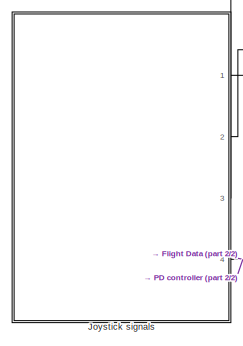
[diagram: root canvas - part 1/2, top left region]
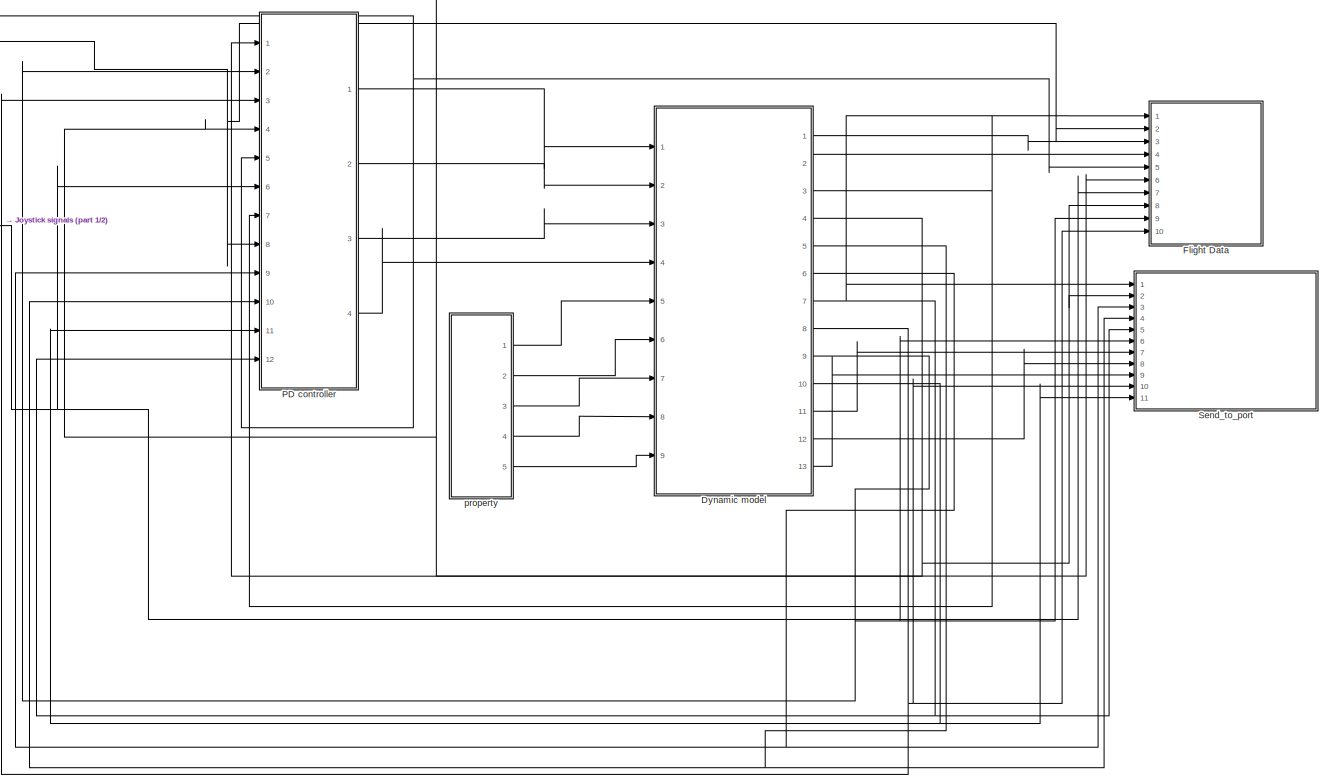
[diagram: root canvas - part 2/2, most of the canvas]
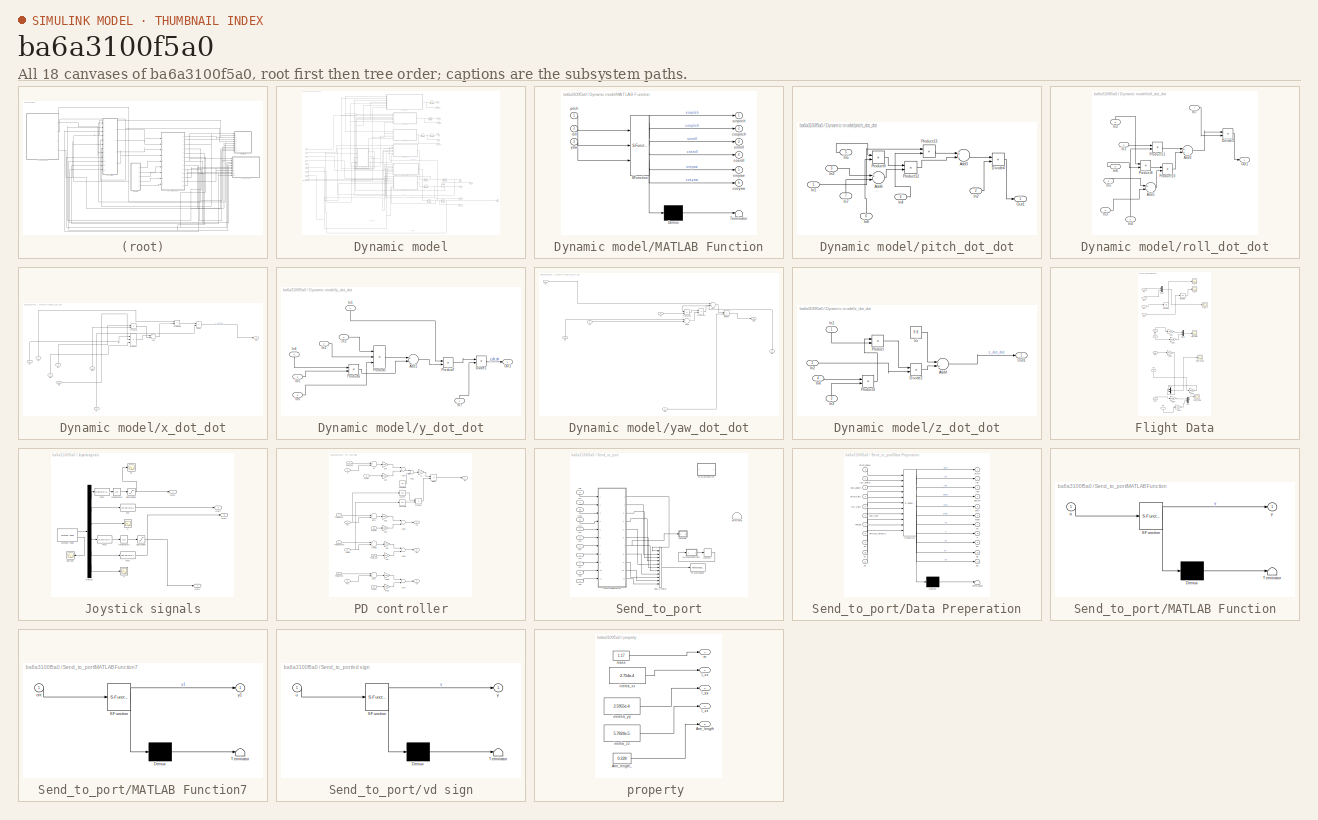
[diagram: thumbnail index - all 18 canvases of the model, root first then tree order]
MODEL slx_ba6a3100f5a0
KIND model
CONFIG AbsTol = auto
CONFIG FixedStep = 0.01
CONFIG MaxStep = auto
CONFIG MinStep = auto
CONFIG RelTol = 1e-3
CONFIG SampleTimeConstraint = Unconstrained
CONFIG Solver = ode45
CONFIG SolverMode = Auto
CONFIG SolverName = ode45
CONFIG StartTime = 0.0
CONFIG StopTime = 100
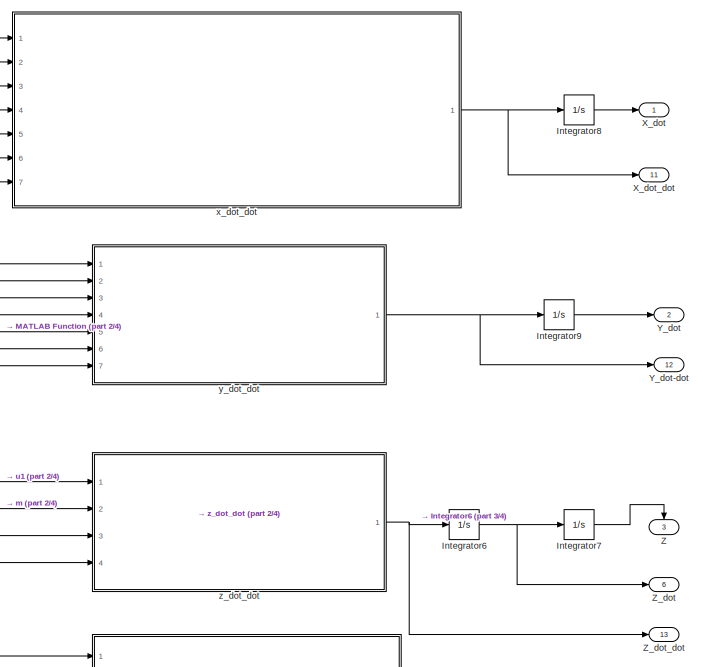
[diagram: Dynamic model - part 1/4, top center region]
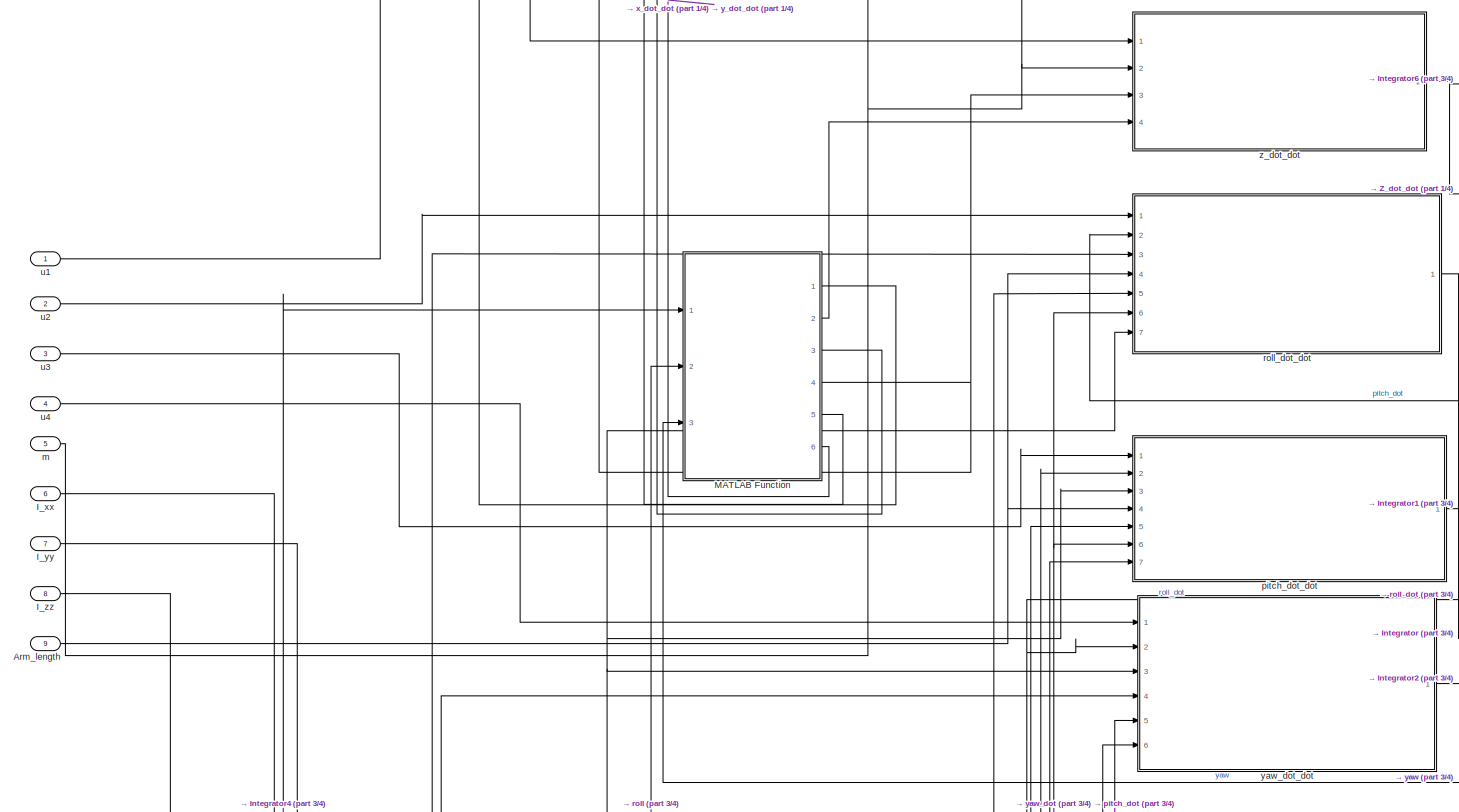
[diagram: Dynamic model - part 2/4, middle left region]
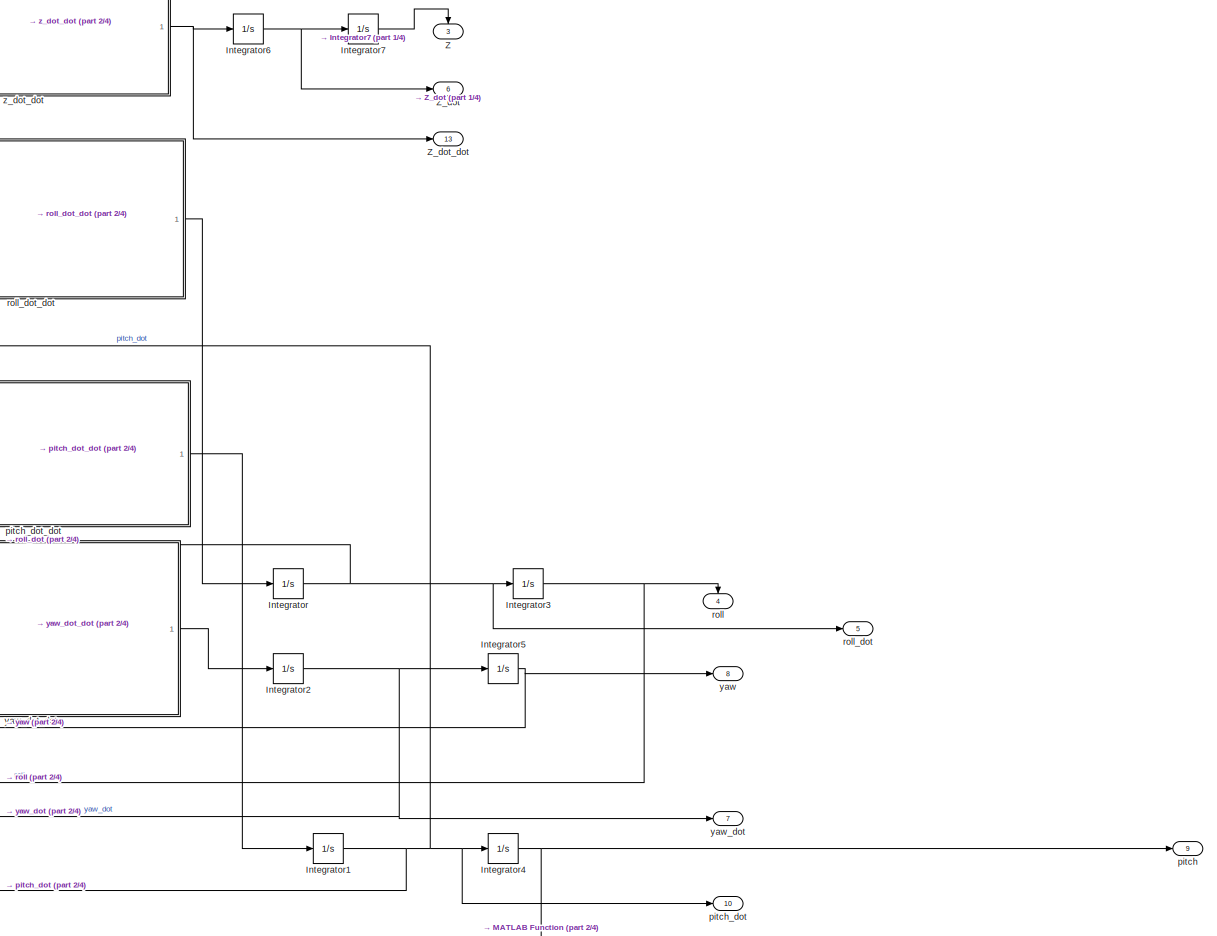
[diagram: Dynamic model - part 3/4, middle right region]
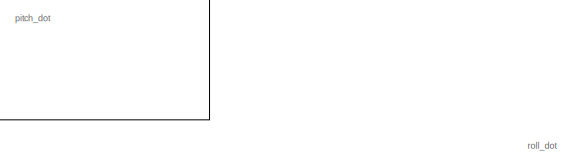
[diagram: Dynamic model - part 4/4, bottom center region]
BLOCK [SubSystem] Dynamic model
  Ports = [9, 13]
  RequestExecContextInheritance = off
BLOCK [Inport] Dynamic model/Arm_length
  IconDisplay = Port number
  Port = 9
BLOCK [Inport] Dynamic model/I_xx
  IconDisplay = Port number
  Port = 6
BLOCK [Inport] Dynamic model/I_yy
  IconDisplay = Port number
  Port = 7
BLOCK [Inport] Dynamic model/I_zz
  IconDisplay = Port number
  Port = 8
BLOCK [Integrator] Dynamic model/Integrator
  Ports = [1, 1]
BLOCK [Integrator] Dynamic model/Integrator1
  Ports = [1, 1]
BLOCK [Integrator] Dynamic model/Integrator2
  Ports = [1, 1]
BLOCK [Integrator] Dynamic model/Integrator3
  Ports = [1, 1]
BLOCK [Integrator] Dynamic model/Integrator4
  Ports = [1, 1]
BLOCK [Integrator] Dynamic model/Integrator5
  Ports = [1, 1]
BLOCK [Integrator] Dynamic model/Integrator6
  Ports = [1, 1]
BLOCK [Integrator] Dynamic model/Integrator7
  Ports = [1, 1]
BLOCK [Integrator] Dynamic model/Integrator8
  Ports = [1, 1]
BLOCK [Integrator] Dynamic model/Integrator9
  Ports = [1, 1]
BLOCK [SubSystem] Dynamic model/MATLAB Function
  ErrorFcn = Stateflow.Translate.translate
  PermitHierarchicalResolution = ExplicitOnly
  Ports = [3, 6]
  RequestExecContextInheritance = off
  SFBlockType = MATLAB Function
  TreatAsAtomicUnit = on
BLOCK [Demux] Dynamic model/MATLAB Function/ Demux 
  Outputs = 1
  Ports = [1, 1]
BLOCK [S-Function] Dynamic model/MATLAB Function/ SFunction 
  EnableBusSupport = on
  FunctionName = sf_sfun
  PortCounts = [3 7]
  Ports = [3, 7]
  Tag = Stateflow S-Function Innerloop_joystick_PIL_block 8
BLOCK [Terminator] Dynamic model/MATLAB Function/ Terminator 
BLOCK [Outport] Dynamic model/MATLAB Function/cospitch
  IconDisplay = Port number
  Port = 2
BLOCK [Outport] Dynamic model/MATLAB Function/cosroll
  IconDisplay = Port number
  Port = 4
BLOCK [Outport] Dynamic model/MATLAB Function/cosyaw
  IconDisplay = Port number
  Port = 6
BLOCK [Inport] Dynamic model/MATLAB Function/pitch
  IconDisplay = Port number
BLOCK [Inport] Dynamic model/MATLAB Function/roll
  IconDisplay = Port number
  Port = 2
BLOCK [Outport] Dynamic model/MATLAB Function/sinpitch
  IconDisplay = Port number
BLOCK [Outport] Dynamic model/MATLAB Function/sinroll
  IconDisplay = Port number
  Port = 3
BLOCK [Outport] Dynamic model/MATLAB Function/sinyaw
  IconDisplay = Port number
  Port = 5
BLOCK [Inport] Dynamic model/MATLAB Function/yaw
  IconDisplay = Port number
  Port = 3
BLOCK [Outport] Dynamic model/X_dot 
  IconDisplay = Port number
BLOCK [Outport] Dynamic model/X_dot_dot
  IconDisplay = Port number
  Port = 11
BLOCK [Outport] Dynamic model/Y_dot
  IconDisplay = Port number
  Port = 2
BLOCK [Outport] Dynamic model/Y_dot-dot
  IconDisplay = Port number
  Port = 12
BLOCK [Outport] Dynamic model/Z
  IconDisplay = Port number
  Port = 3
BLOCK [Outport] Dynamic model/Z_dot
  IconDisplay = Port number
  Port = 6
BLOCK [Outport] Dynamic model/Z_dot_dot
  IconDisplay = Port number
  Port = 13
BLOCK [Inport] Dynamic model/m
  IconDisplay = Port number
  Port = 5
BLOCK [Outport] Dynamic model/pitch
  IconDisplay = Port number
  Port = 9
BLOCK [Outport] Dynamic model/pitch_dot
  IconDisplay = Port number
  Port = 10
BLOCK [SubSystem] Dynamic model/pitch_dot_dot
  Ports = [7, 1]
  RequestExecContextInheritance = off
BLOCK [Sum] Dynamic model/pitch_dot_dot/Add3
  InputSameDT = off
  OutDataTypeStr = Inherit: Inherit via internal rule
  Ports = [2, 1]
  SaturateOnIntegerOverflow = off
BLOCK [Sum] Dynamic model/pitch_dot_dot/Add6
  InputSameDT = off
  Inputs = +-
  OutDataTypeStr = Inherit: Inherit via internal rule
  Ports = [2, 1]
  SaturateOnIntegerOverflow = off
BLOCK [Product] Dynamic model/pitch_dot_dot/Divide4
  InputSameDT = off
  Inputs = */
  OutDataTypeStr = Inherit: Inherit via internal rule
  Ports = [2, 1]
  RndMeth = Floor
  SaturateOnIntegerOverflow = off
BLOCK [Inport] Dynamic model/pitch_dot_dot/In1
  IconDisplay = Port number
BLOCK [Inport] Dynamic model/pitch_dot_dot/In2
  IconDisplay = Port number
  Port = 2
BLOCK [Inport] Dynamic model/pitch_dot_dot/In3
  IconDisplay = Port number
  Port = 3
BLOCK [Inport] Dynamic model/pitch_dot_dot/In4
  IconDisplay = Port number
  Port = 4
BLOCK [Inport] Dynamic model/pitch_dot_dot/In5
  IconDisplay = Port number
  Port = 5
BLOCK [Inport] Dynamic model/pitch_dot_dot/In6
  IconDisplay = Port number
  Port = 6
BLOCK [Inport] Dynamic model/pitch_dot_dot/In7
  IconDisplay = Port number
  Port = 7
BLOCK [Outport] Dynamic model/pitch_dot_dot/Out1
  IconDisplay = Port number
BLOCK [Product] Dynamic model/pitch_dot_dot/Product12
  InputSameDT = off
  OutDataTypeStr = Inherit: Inherit via internal rule
  Ports = [2, 1]
  RndMeth = Floor
  SaturateOnIntegerOverflow = off
BLOCK [Product] Dynamic model/pitch_dot_dot/Product13
  InputSameDT = off
  OutDataTypeStr = Inherit: Inherit via internal rule
  Ports = [2, 1]
  RndMeth = Floor
  SaturateOnIntegerOverflow = off
BLOCK [Product] Dynamic model/pitch_dot_dot/Product9
  InputSameDT = off
  OutDataTypeStr = Inherit: Inherit via internal rule
  Ports = [2, 1]
  RndMeth = Floor
  SaturateOnIntegerOverflow = off
BLOCK [Outport] Dynamic model/roll
  IconDisplay = Port number
  Port = 4
BLOCK [Outport] Dynamic model/roll_dot
  IconDisplay = Port number
  Port = 5
BLOCK [SubSystem] Dynamic model/roll_dot_dot
  Ports = [7, 1]
  RequestExecContextInheritance = off
BLOCK [Sum] Dynamic model/roll_dot_dot/Add2
  InputSameDT = off
  OutDataTypeStr = Inherit: Inherit via internal rule
  Ports = [2, 1]
  SaturateOnIntegerOverflow = off
BLOCK [Sum] Dynamic model/roll_dot_dot/Add5
  InputSameDT = off
  Inputs = +-
  OutDataTypeStr = Inherit: Inherit via internal rule
  Ports = [2, 1]
  SaturateOnIntegerOverflow = off
BLOCK [Product] Dynamic model/roll_dot_dot/Divide3
  InputSameDT = off
  Inputs = */
  OutDataTypeStr = Inherit: Inherit via internal rule
  Ports = [2, 1]
  RndMeth = Floor
  SaturateOnIntegerOverflow = off
BLOCK [Inport] Dynamic model/roll_dot_dot/In1
  IconDisplay = Port number
BLOCK [Inport] Dynamic model/roll_dot_dot/In2
  IconDisplay = Port number
  Port = 2
BLOCK [Inport] Dynamic model/roll_dot_dot/In3
  IconDisplay = Port number
  Port = 3
BLOCK [Inport] Dynamic model/roll_dot_dot/In4
  IconDisplay = Port number
  Port = 4
BLOCK [Inport] Dynamic model/roll_dot_dot/In5
  IconDisplay = Port number
  Port = 5
BLOCK [Inport] Dynamic model/roll_dot_dot/In6
  IconDisplay = Port number
  Port = 6
BLOCK [Inport] Dynamic model/roll_dot_dot/In7
  IconDisplay = Port number
  Port = 7
BLOCK [Outport] Dynamic model/roll_dot_dot/Out1
  IconDisplay = Port number
BLOCK [Product] Dynamic model/roll_dot_dot/Product10
  InputSameDT = off
  OutDataTypeStr = Inherit: Inherit via internal rule
  Ports = [2, 1]
  RndMeth = Floor
  SaturateOnIntegerOverflow = off
BLOCK [Product] Dynamic model/roll_dot_dot/Product11
  InputSameDT = off
  OutDataTypeStr = Inherit: Inherit via internal rule
  Ports = [2, 1]
  RndMeth = Floor
  SaturateOnIntegerOverflow = off
BLOCK [Product] Dynamic model/roll_dot_dot/Product8
  InputSameDT = off
  OutDataTypeStr = Inherit: Inherit via internal rule
  Ports = [2, 1]
  RndMeth = Floor
  SaturateOnIntegerOverflow = off
BLOCK [Inport] Dynamic model/u1
  IconDisplay = Port number
BLOCK [Inport] Dynamic model/u2
  IconDisplay = Port number
  Port = 2
BLOCK [Inport] Dynamic model/u3
  IconDisplay = Port number
  Port = 3
BLOCK [Inport] Dynamic model/u4
  IconDisplay = Port number
  Port = 4
BLOCK [SubSystem] Dynamic model/x_dot_dot
  Ports = [7, 1]
  RequestExecContextInheritance = off
BLOCK [Sum] Dynamic model/x_dot_dot/Add
  InputSameDT = off
  OutDataTypeStr = Inherit: Inherit via internal rule
  Ports = [2, 1]
  SaturateOnIntegerOverflow = off
BLOCK [Product] Dynamic model/x_dot_dot/Divide
  InputSameDT = off
  Inputs = */
  OutDataTypeStr = Inherit: Inherit via internal rule
  Ports = [2, 1]
  RndMeth = Floor
  SaturateOnIntegerOverflow = off
BLOCK [Inport] Dynamic model/x_dot_dot/In1
  IconDisplay = Port number
BLOCK [Inport] Dynamic model/x_dot_dot/In2
  IconDisplay = Port number
  Port = 2
BLOCK [Inport] Dynamic model/x_dot_dot/In3
  IconDisplay = Port number
  Port = 3
BLOCK [Inport] Dynamic model/x_dot_dot/In4
  IconDisplay = Port number
  Port = 4
BLOCK [Inport] Dynamic model/x_dot_dot/In5
  IconDisplay = Port number
  Port = 5
BLOCK [Inport] Dynamic model/x_dot_dot/In6
  IconDisplay = Port number
  Port = 6
BLOCK [Inport] Dynamic model/x_dot_dot/In7
  IconDisplay = Port number
  Port = 7
BLOCK [Outport] Dynamic model/x_dot_dot/Out1
  IconDisplay = Port number
BLOCK [Product] Dynamic model/x_dot_dot/Product1
  InputSameDT = off
  Inputs = 3
  OutDataTypeStr = Inherit: Inherit via internal rule
  Ports = [3, 1]
  RndMeth = Floor
  SaturateOnIntegerOverflow = off
BLOCK [Product] Dynamic model/x_dot_dot/Product2
  InputSameDT = off
  OutDataTypeStr = Inherit: Inherit via internal rule
  Ports = [2, 1]
  RndMeth = Floor
  SaturateOnIntegerOverflow = off
BLOCK [Product] Dynamic model/x_dot_dot/Product3
  InputSameDT = off
  OutDataTypeStr = Inherit: Inherit via internal rule
  Ports = [2, 1]
  RndMeth = Floor
  SaturateOnIntegerOverflow = off
BLOCK [SubSystem] Dynamic model/y_dot_dot
  Ports = [7, 1]
  RequestExecContextInheritance = off
BLOCK [Sum] Dynamic model/y_dot_dot/Add1
  InputSameDT = off
  Inputs = +-
  OutDataTypeStr = Inherit: Inherit via internal rule
  Ports = [2, 1]
  SaturateOnIntegerOverflow = off
BLOCK [Product] Dynamic model/y_dot_dot/Divide1
  InputSameDT = off
  Inputs = */
  OutDataTypeStr = Inherit: Inherit via internal rule
  Ports = [2, 1]
  RndMeth = Floor
  SaturateOnIntegerOverflow = off
BLOCK [Inport] Dynamic model/y_dot_dot/In1
  IconDisplay = Port number
BLOCK [Inport] Dynamic model/y_dot_dot/In2
  IconDisplay = Port number
  Port = 2
BLOCK [Inport] Dynamic model/y_dot_dot/In3
  IconDisplay = Port number
  Port = 3
BLOCK [Inport] Dynamic model/y_dot_dot/In4
  IconDisplay = Port number
  Port = 4
BLOCK [Inport] Dynamic model/y_dot_dot/In5
  IconDisplay = Port number
  Port = 5
BLOCK [Inport] Dynamic model/y_dot_dot/In6
  IconDisplay = Port number
  Port = 6
BLOCK [Inport] Dynamic model/y_dot_dot/In7
  IconDisplay = Port number
  Port = 7
BLOCK [Outport] Dynamic model/y_dot_dot/Out1
  IconDisplay = Port number
BLOCK [Product] Dynamic model/y_dot_dot/Product5
  InputSameDT = off
  Inputs = 3
  OutDataTypeStr = Inherit: Inherit via internal rule
  Ports = [3, 1]
  RndMeth = Floor
  SaturateOnIntegerOverflow = off
BLOCK [Product] Dynamic model/y_dot_dot/Product6
  InputSameDT = off
  OutDataTypeStr = Inherit: Inherit via internal rule
  Ports = [2, 1]
  RndMeth = Floor
  SaturateOnIntegerOverflow = off
BLOCK [Product] Dynamic model/y_dot_dot/Product7
  InputSameDT = off
  OutDataTypeStr = Inherit: Inherit via internal rule
  Ports = [2, 1]
  RndMeth = Floor
  SaturateOnIntegerOverflow = off
BLOCK [Outport] Dynamic model/yaw
  IconDisplay = Port number
  Port = 8
BLOCK [Outport] Dynamic model/yaw_dot
  IconDisplay = Port number
  Port = 7
BLOCK [SubSystem] Dynamic model/yaw_dot_dot
  Ports = [6, 1]
  RequestExecContextInheritance = off
BLOCK [Sum] Dynamic model/yaw_dot_dot/Add7
  InputSameDT = off
  OutDataTypeStr = Inherit: Inherit via internal rule
  Ports = [2, 1]
  SaturateOnIntegerOverflow = off
BLOCK [Sum] Dynamic model/yaw_dot_dot/Add8
  InputSameDT = off
  Inputs = +-
  OutDataTypeStr = Inherit: Inherit via internal rule
  Ports = [2, 1]
  SaturateOnIntegerOverflow = off
BLOCK [Product] Dynamic model/yaw_dot_dot/Divide5
  InputSameDT = off
  Inputs = */
  OutDataTypeStr = Inherit: Inherit via internal rule
  Ports = [2, 1]
  RndMeth = Floor
  SaturateOnIntegerOverflow = off
BLOCK [Inport] Dynamic model/yaw_dot_dot/In1
  IconDisplay = Port number
BLOCK [Inport] Dynamic model/yaw_dot_dot/In2
  IconDisplay = Port number
  Port = 2
BLOCK [Inport] Dynamic model/yaw_dot_dot/In3
  IconDisplay = Port number
  Port = 3
BLOCK [Inport] Dynamic model/yaw_dot_dot/In4
  IconDisplay = Port number
  Port = 4
BLOCK [Inport] Dynamic model/yaw_dot_dot/In5
  IconDisplay = Port number
  Port = 5
BLOCK [Inport] Dynamic model/yaw_dot_dot/In6
  IconDisplay = Port number
  Port = 6
BLOCK [Outport] Dynamic model/yaw_dot_dot/Out1
  IconDisplay = Port number
BLOCK [Product] Dynamic model/yaw_dot_dot/Product14
  InputSameDT = off
  OutDataTypeStr = Inherit: Inherit via internal rule
  Ports = [2, 1]
  RndMeth = Floor
  SaturateOnIntegerOverflow = off
BLOCK [Product] Dynamic model/yaw_dot_dot/Product15
  InputSameDT = off
  OutDataTypeStr = Inherit: Inherit via internal rule
  Ports = [2, 1]
  RndMeth = Floor
  SaturateOnIntegerOverflow = off
BLOCK [SubSystem] Dynamic model/z_dot_dot
  Ports = [4, 1]
  RequestExecContextInheritance = off
BLOCK [Sum] Dynamic model/z_dot_dot/Add4
  InputSameDT = off
  Inputs = -+
  OutDataTypeStr = Inherit: Inherit via internal rule
  Ports = [2, 1]
  SaturateOnIntegerOverflow = off
BLOCK [Product] Dynamic model/z_dot_dot/Divide2
  InputSameDT = off
  Inputs = */
  OutDataTypeStr = Inherit: Inherit via internal rule
  Ports = [2, 1]
  RndMeth = Floor
  SaturateOnIntegerOverflow = off
BLOCK [Inport] Dynamic model/z_dot_dot/In1
  IconDisplay = Port number
BLOCK [Inport] Dynamic model/z_dot_dot/In2
  IconDisplay = Port number
  Port = 2
BLOCK [Inport] Dynamic model/z_dot_dot/In3
  IconDisplay = Port number
  Port = 3
BLOCK [Inport] Dynamic model/z_dot_dot/In4
  IconDisplay = Port number
  Port = 4
BLOCK [Outport] Dynamic model/z_dot_dot/Out1
  IconDisplay = Port number
BLOCK [Product] Dynamic model/z_dot_dot/Product
  InputSameDT = off
  OutDataTypeStr = Inherit: Inherit via internal rule
  Ports = [2, 1]
  RndMeth = Floor
  SaturateOnIntegerOverflow = off
BLOCK [Product] Dynamic model/z_dot_dot/Product4
  InputSameDT = off
  OutDataTypeStr = Inherit: Inherit via internal rule
  Ports = [2, 1]
  RndMeth = Floor
  SaturateOnIntegerOverflow = off
BLOCK [Constant] Dynamic model/z_dot_dot/u5
  Value = 9.8
BLOCK [SubSystem] Flight Data
  Ports = [10]
  RequestExecContextInheritance = off
BLOCK [Gain] Flight Data/Gain
  Gain = 57.3
  OutDataTypeStr = Inherit: Inherit via internal rule
  ParamDataTypeStr = Inherit: Inherit via internal rule
  SaturateOnIntegerOverflow = off
BLOCK [Gain] Flight Data/Gain1
  Gain = 57.3
  OutDataTypeStr = Inherit: Inherit via internal rule
  ParamDataTypeStr = Inherit: Inherit via internal rule
  SaturateOnIntegerOverflow = off
BLOCK [Gain] Flight Data/Gain2
  Gain = 57.3
  OutDataTypeStr = Inherit: Inherit via internal rule
  ParamDataTypeStr = Inherit: Inherit via internal rule
  SaturateOnIntegerOverflow = off
BLOCK [Gain] Flight Data/Gain3
  Gain = 57.3
  OutDataTypeStr = Inherit: Inherit via internal rule
  ParamDataTypeStr = Inherit: Inherit via internal rule
  SaturateOnIntegerOverflow = off
BLOCK [Gain] Flight Data/Gain4
  Gain = 57.3
  OutDataTypeStr = Inherit: Inherit via internal rule
  ParamDataTypeStr = Inherit: Inherit via internal rule
  SaturateOnIntegerOverflow = off
BLOCK [Gain] Flight Data/Gain5
  Gain = 57.3
  OutDataTypeStr = Inherit: Inherit via internal rule
  ParamDataTypeStr = Inherit: Inherit via internal rule
  SaturateOnIntegerOverflow = off
BLOCK [Inport] Flight Data/In1
  IconDisplay = Port number
BLOCK [Inport] Flight Data/In10
  IconDisplay = Port number
  Port = 10
BLOCK [Inport] Flight Data/In2
  IconDisplay = Port number
  Port = 2
BLOCK [Inport] Flight Data/In3
  IconDisplay = Port number
  Port = 3
BLOCK [Inport] Flight Data/In4
  IconDisplay = Port number
  Port = 4
BLOCK [Inport] Flight Data/In5
  IconDisplay = Port number
  Port = 5
BLOCK [Inport] Flight Data/In6
  IconDisplay = Port number
  Port = 6
BLOCK [Inport] Flight Data/In7
  IconDisplay = Port number
  Port = 7
BLOCK [Inport] Flight Data/In8
  IconDisplay = Port number
  Port = 8
BLOCK [Inport] Flight Data/In9
  IconDisplay = Port number
  Port = 9
BLOCK [Integrator] Flight Data/Integrator
  Ports = [1, 1]
BLOCK [Integrator] Flight Data/Integrator1
  Ports = [1, 1]
BLOCK [Mux] Flight Data/Mux
  DisplayOption = bar
  Inputs = 2
  Ports = [2, 1]
BLOCK [Mux] Flight Data/Mux1
  DisplayOption = bar
  Inputs = 2
  Ports = [2, 1]
BLOCK [Mux] Flight Data/Mux2
  DisplayOption = bar
  Inputs = 2
  Ports = [2, 1]
BLOCK [Mux] Flight Data/Mux3
  DisplayOption = bar
  Inputs = 2
  Ports = [2, 1]
BLOCK [Scope] Flight Data/X
  DataFormat = StructureWithTime
  Floating = off
  LimitDataPoints = off
  NumInputPorts = 1
  Ports = [1]
  SampleTime = 0
  YMax = -160
  YMin = -220
BLOCK [Scope] Flight Data/Y
  DataFormat = StructureWithTime
  Floating = off
  LimitDataPoints = off
  NumInputPorts = 1
  Ports = [1]
  SampleTime = 0
  SaveName = ScopeData2
  YMax = -50750
  YMin = -53000
BLOCK [Scope] Flight Data/Z
  DataFormat = StructureWithTime
  Floating = off
  LimitDataPoints = off
  NumInputPorts = 1
  Ports = [1]
  SampleTime = 0
  SaveName = ScopeData3
  YMax = 105
  YMin = 95
BLOCK [Scope] Flight Data/pitch_angle
  DataFormat = StructureWithTime
  Floating = off
  LimitDataPoints = off
  NumInputPorts = 1
  Ports = [1]
  SampleTime = 0
  SaveName = ScopeData1
BLOCK [Scope] Flight Data/roll_angle
  DataFormat = StructureWithTime
  Floating = off
  LimitDataPoints = off
  NumInputPorts = 1
  Ports = [1]
  SampleTime = 0
  SaveName = ScopeData4
  YMax = 12
  YMin = -7
BLOCK [Scope] Flight Data/yaw_angle
  DataFormat = StructureWithTime
  Floating = off
  LimitDataPoints = off
  NumInputPorts = 1
  Ports = [1]
  SampleTime = 0
  SaveName = ScopeData5
  YMax = 8.5
  YMin = 2.5
BLOCK [SubSystem] Joystick signals
  Ports = [0, 4]
  RequestExecContextInheritance = off
BLOCK [Scope] Joystick signals/3
  DataFormat = StructureWithTime
  Floating = off
  LimitDataPoints = off
  NumInputPorts = 1
  Ports = [1]
  SampleTime = 0
  SaveName = ScopeData9
BLOCK [Scope] Joystick signals/6
  DataFormat = StructureWithTime
  Floating = off
  LimitDataPoints = off
  NumInputPorts = 1
  Ports = [1]
  SampleTime = 0
  SaveName = ScopeData10
BLOCK [Demux] Joystick signals/Demux
  DisplayOption = bar
  Outputs = 6
  Ports = [1, 6]
BLOCK [Fcn] Joystick signals/Fcn
  Expr = (43.42*(u(1)+0.832)-35)/57.3
BLOCK [Fcn] Joystick signals/Fcn1
  Expr = (38.48*(u(1)+0.965)-35)/57.3
BLOCK [Fcn] Joystick signals/Fcn2
  Expr = (21.61*(u(1)+0.956)-20)/57.3
BLOCK [Fcn] Joystick signals/Fcn3
  Expr = 14.81*u(1)/1.17
BLOCK [Integrator] Joystick signals/Integrator2
  Ports = [1, 1]
BLOCK [Integrator] Joystick signals/Integrator3
  Ports = [1, 1]
BLOCK [Reference] Joystick signals/Joystick Input  REF=vrlib/Joystick Input
  Ports = [0, 2]
  SourceBlock = vrlib/Joystick Input
  SourceType = Joystick Input
  adjustports = on
  forcefeed = off
  joyid = 1
BLOCK [Outport] Joystick signals/Out1
  IconDisplay = Port number
BLOCK [Outport] Joystick signals/Out2
  IconDisplay = Port number
  Port = 2
BLOCK [Outport] Joystick signals/Out3
  IconDisplay = Port number
  Port = 3
BLOCK [Outport] Joystick signals/Out4
  IconDisplay = Port number
  Port = 4
BLOCK [Saturate] Joystick signals/Saturation
  InputPortMap = u0
  LowerLimit = -pi
  Ports = [1, 1]
  UpperLimit = pi
BLOCK [Saturate] Joystick signals/Saturation1
  InputPortMap = u0
  LowerLimit = 0
  Ports = [1, 1]
  UpperLimit = 100
BLOCK [Scope] Joystick signals/Z1
  DataFormat = StructureWithTime
  Floating = off
  LimitDataPoints = off
  NumInputPorts = 1
  Ports = [1]
  SampleTime = 0
  SaveName = ScopeData7
  YMax = -0.765
  YMin = -0.774
BLOCK [Scope] Joystick signals/buttons
  DataFormat = StructureWithTime
  Floating = off
  LimitDataPoints = off
  NumInputPorts = 1
  Ports = [1]
  SampleTime = 0
  SaveName = ScopeData12
BLOCK [SubSystem] PD controller
  Ports = [12, 4]
  RequestExecContextInheritance = off
BLOCK [Sum] PD controller/Add2
  InputSameDT = off
  OutDataTypeStr = Inherit: Inherit via internal rule
  Ports = [2, 1]
  SaturateOnIntegerOverflow = off
BLOCK [Sum] PD controller/Add4
  InputSameDT = off
  Inputs = +-
  OutDataTypeStr = Inherit: Inherit via internal rule
  Ports = [2, 1]
  SaturateOnIntegerOverflow = off
BLOCK [Sum] PD controller/Add5
  InputSameDT = off
  Inputs = +-
  OutDataTypeStr = Inherit: Inherit via internal rule
  Ports = [2, 1]
  SaturateOnIntegerOverflow = off
BLOCK [Sum] PD controller/Add6
  InputSameDT = off
  Inputs = +-
  OutDataTypeStr = Inherit: Inherit via internal rule
  Ports = [2, 1]
  SaturateOnIntegerOverflow = off
BLOCK [Sum] PD controller/Add7
  InputSameDT = off
  Inputs = +-
  OutDataTypeStr = Inherit: Inherit via internal rule
  Ports = [2, 1]
  SaturateOnIntegerOverflow = off
BLOCK [Constant] PD controller/Constant1
  Value = 9.8
BLOCK [Product] PD controller/Divide
  InputSameDT = off
  Inputs = */
  OutDataTypeStr = Inherit: Inherit via internal rule
  Ports = [2, 1]
  RndMeth = Floor
  SaturateOnIntegerOverflow = off
BLOCK [Inport] PD controller/Phi
  IconDisplay = Port number
BLOCK [Inport] PD controller/Phi desired
  IconDisplay = Port number
  Port = 4
BLOCK [Inport] PD controller/Phi_dot
  IconDisplay = Port number
  Port = 10
BLOCK [Product] PD controller/Product
  InputSameDT = off
  OutDataTypeStr = Inherit: Inherit via internal rule
  Ports = [2, 1]
  SaturateOnIntegerOverflow = off
BLOCK [Inport] PD controller/Psi
  IconDisplay = Port number
  Port = 3
BLOCK [Inport] PD controller/Psi desired
  IconDisplay = Port number
  Port = 6
BLOCK [Inport] PD controller/Psi_dot 
  IconDisplay = Port number
  Port = 12
BLOCK [Inport] PD controller/Theta
  IconDisplay = Port number
  Port = 2
BLOCK [Inport] PD controller/Theta desired
  IconDisplay = Port number
  Port = 5
BLOCK [Inport] PD controller/Theta_dot
  IconDisplay = Port number
  Port = 11
BLOCK [Outport] PD controller/U1
  IconDisplay = Port number
BLOCK [Outport] PD controller/U2
  IconDisplay = Port number
  Port = 2
BLOCK [Outport] PD controller/U3
  IconDisplay = Port number
  Port = 3
BLOCK [Outport] PD controller/U4
  IconDisplay = Port number
  Port = 4
BLOCK [Inport] PD controller/Z
  IconDisplay = Port number
  Port = 7
BLOCK [Inport] PD controller/Z desired
  IconDisplay = Port number
  Port = 8
BLOCK [Inport] PD controller/Z_dot
  IconDisplay = Port number
  Port = 9
BLOCK [Trigonometry] PD controller/cos Phi
  Operator = cos
  Ports = [1, 1]
BLOCK [Trigonometry] PD controller/cos Theta
  Operator = cos
  Ports = [1, 1]
BLOCK [Sum] PD controller/ePhi
  InputSameDT = off
  Inputs = +-
  OutDataTypeStr = Inherit: Inherit via internal rule
  Ports = [2, 1]
  SaturateOnIntegerOverflow = off
BLOCK [Sum] PD controller/ePsi
  InputSameDT = off
  Inputs = +-
  OutDataTypeStr = Inherit: Inherit via internal rule
  Ports = [2, 1]
  SaturateOnIntegerOverflow = off
BLOCK [Sum] PD controller/eTheta
  InputSameDT = off
  Inputs = +-
  OutDataTypeStr = Inherit: Inherit via internal rule
  Ports = [2, 1]
  SaturateOnIntegerOverflow = off
BLOCK [Sum] PD controller/ez
  InputSameDT = off
  Inputs = +-
  OutDataTypeStr = Inherit: Inherit via internal rule
  Ports = [2, 1]
  SaturateOnIntegerOverflow = off
BLOCK [Gain] PD controller/kdp
  Gain = kdp
  OutDataTypeStr = Inherit: Inherit via internal rule
  ParamDataTypeStr = Inherit: Inherit via internal rule
  SaturateOnIntegerOverflow = off
BLOCK [Gain] PD controller/kdps
  Gain = kdps
  OutDataTypeStr = Inherit: Inherit via internal rule
  ParamDataTypeStr = Inherit: Inherit via internal rule
  SaturateOnIntegerOverflow = off
BLOCK [Gain] PD controller/kdt
  Gain = kdt
  OutDataTypeStr = Inherit: Inherit via internal rule
  ParamDataTypeStr = Inherit: Inherit via internal rule
  SaturateOnIntegerOverflow = off
BLOCK [Gain] PD controller/kdz
  Gain = kdz
  OutDataTypeStr = Inherit: Inherit via internal rule
  ParamDataTypeStr = Inherit: Inherit via internal rule
  SaturateOnIntegerOverflow = off
BLOCK [Gain] PD controller/kpp
  Gain = kpp
  OutDataTypeStr = Inherit: Inherit via internal rule
  ParamDataTypeStr = Inherit: Inherit via internal rule
  SaturateOnIntegerOverflow = off
BLOCK [Gain] PD controller/kpps
  Gain = kpps
  OutDataTypeStr = Inherit: Inherit via internal rule
  ParamDataTypeStr = Inherit: Inherit via internal rule
  SaturateOnIntegerOverflow = off
BLOCK [Gain] PD controller/kpt
  Gain = kpt
  OutDataTypeStr = Inherit: Inherit via internal rule
  ParamDataTypeStr = Inherit: Inherit via internal rule
  SaturateOnIntegerOverflow = off
BLOCK [Gain] PD controller/kpz
  Gain = kpz
  OutDataTypeStr = Inherit: Inherit via internal rule
  ParamDataTypeStr = Inherit: Inherit via internal rule
  SaturateOnIntegerOverflow = off
BLOCK [Gain] PD controller/m
  Gain = 1.17
  OutDataTypeStr = Inherit: Inherit via internal rule
  ParamDataTypeStr = Inherit: Inherit via internal rule
  SaturateOnIntegerOverflow = off
BLOCK [SubSystem] Send_to_port
  Ports = [11]
  RequestExecContextInheritance = off
BLOCK [BusCreator] Send_to_port/Bus Creator
  DisplayOption = bar
  Inputs = 11
  Ports = [11, 1]
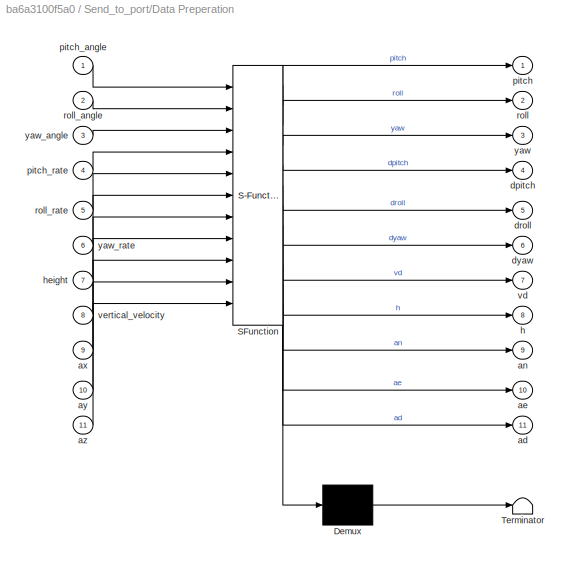
BLOCK [SubSystem] Send_to_port/Data Preperation
  ErrorFcn = Stateflow.Translate.translate
  PermitHierarchicalResolution = ExplicitOnly
  Ports = [11, 11]
  RequestExecContextInheritance = off
  SFBlockType = MATLAB Function
  TreatAsAtomicUnit = on
BLOCK [Demux] Send_to_port/Data Preperation/ Demux 
  Outputs = 1
  Ports = [1, 1]
BLOCK [S-Function] Send_to_port/Data Preperation/ SFunction 
  EnableBusSupport = on
  FunctionName = sf_sfun
  PortCounts = [11 12]
  Ports = [11, 12]
  Tag = Stateflow S-Function Innerloop_joystick_PIL_block 2
BLOCK [Terminator] Send_to_port/Data Preperation/ Terminator 
BLOCK [Outport] Send_to_port/Data Preperation/ad
  IconDisplay = Port number
  Port = 11
BLOCK [Outport] Send_to_port/Data Preperation/ae
  IconDisplay = Port number
  Port = 10
BLOCK [Outport] Send_to_port/Data Preperation/an
  IconDisplay = Port number
  Port = 9
BLOCK [Inport] Send_to_port/Data Preperation/ax
  IconDisplay = Port number
  Port = 9
BLOCK [Inport] Send_to_port/Data Preperation/ay
  IconDisplay = Port number
  Port = 10
BLOCK [Inport] Send_to_port/Data Preperation/az
  IconDisplay = Port number
  Port = 11
BLOCK [Outport] Send_to_port/Data Preperation/dpitch
  IconDisplay = Port number
  Port = 4
BLOCK [Outport] Send_to_port/Data Preperation/droll
  IconDisplay = Port number
  Port = 5
BLOCK [Outport] Send_to_port/Data Preperation/dyaw
  IconDisplay = Port number
  Port = 6
BLOCK [Outport] Send_to_port/Data Preperation/h
  IconDisplay = Port number
  Port = 8
BLOCK [Inport] Send_to_port/Data Preperation/height
  IconDisplay = Port number
  Port = 7
BLOCK [Outport] Send_to_port/Data Preperation/pitch
  IconDisplay = Port number
BLOCK [Inport] Send_to_port/Data Preperation/pitch_angle
  IconDisplay = Port number
BLOCK [Inport] Send_to_port/Data Preperation/pitch_rate
  IconDisplay = Port number
  Port = 4
BLOCK [Outport] Send_to_port/Data Preperation/roll
  IconDisplay = Port number
  Port = 2
BLOCK [Inport] Send_to_port/Data Preperation/roll_angle
  IconDisplay = Port number
  Port = 2
BLOCK [Inport] Send_to_port/Data Preperation/roll_rate
  IconDisplay = Port number
  Port = 5
BLOCK [Outport] Send_to_port/Data Preperation/vd
  IconDisplay = Port number
  Port = 7
BLOCK [Inport] Send_to_port/Data Preperation/vertical_velocity
  IconDisplay = Port number
  Port = 8
BLOCK [Outport] Send_to_port/Data Preperation/yaw
  IconDisplay = Port number
  Port = 3
BLOCK [Inport] Send_to_port/Data Preperation/yaw_angle
  IconDisplay = Port number
  Port = 3
BLOCK [Inport] Send_to_port/Data Preperation/yaw_rate
  IconDisplay = Port number
  Port = 6
BLOCK [Inport] Send_to_port/In1
  IconDisplay = Port number
BLOCK [Inport] Send_to_port/In10
  IconDisplay = Port number
  Port = 10
BLOCK [Inport] Send_to_port/In11
  IconDisplay = Port number
  Port = 11
BLOCK [Inport] Send_to_port/In2
  IconDisplay = Port number
  Port = 2
BLOCK [Inport] Send_to_port/In3
  IconDisplay = Port number
  Port = 3
BLOCK [Inport] Send_to_port/In4
  IconDisplay = Port number
  Port = 4
BLOCK [Inport] Send_to_port/In5
  IconDisplay = Port number
  Port = 5
BLOCK [Inport] Send_to_port/In6
  IconDisplay = Port number
  Port = 6
BLOCK [Inport] Send_to_port/In7
  IconDisplay = Port number
  Port = 7
BLOCK [Inport] Send_to_port/In8
  IconDisplay = Port number
  Port = 8
BLOCK [Inport] Send_to_port/In9
  IconDisplay = Port number
  Port = 9
BLOCK [SubSystem] Send_to_port/MATLAB Function
  ErrorFcn = Stateflow.Translate.translate
  PermitHierarchicalResolution = ExplicitOnly
  Ports = [1, 1]
  RequestExecContextInheritance = off
  SFBlockType = MATLAB Function
  TreatAsAtomicUnit = on
BLOCK [Demux] Send_to_port/MATLAB Function/ Demux 
  Outputs = 1
  Ports = [1, 1]
BLOCK [S-Function] Send_to_port/MATLAB Function/ SFunction 
  FunctionName = sf_sfun
  PortCounts = [1 2]
  Ports = [1, 2]
  Tag = Stateflow S-Function Innerloop_joystick_PIL_block 3
BLOCK [Terminator] Send_to_port/MATLAB Function/ Terminator 
BLOCK [Inport] Send_to_port/MATLAB Function/a
  IconDisplay = Port number
BLOCK [Outport] Send_to_port/MATLAB Function/y
  IconDisplay = Port number
BLOCK [SubSystem] Send_to_port/MATLAB Function7
  ErrorFcn = Stateflow.Translate.translate
  PermitHierarchicalResolution = ExplicitOnly
  Ports = [1, 1]
  RequestExecContextInheritance = off
  SFBlockType = MATLAB Function
  TreatAsAtomicUnit = on
BLOCK [Demux] Send_to_port/MATLAB Function7/ Demux 
  Outputs = 1
  Ports = [1, 1]
BLOCK [S-Function] Send_to_port/MATLAB Function7/ SFunction 
  EnableBusSupport = on
  FunctionName = sf_sfun
  PortCounts = [1 2]
  Ports = [1, 2]
  Tag = Stateflow S-Function Innerloop_joystick_PIL_block 14
BLOCK [Terminator] Send_to_port/MATLAB Function7/ Terminator 
BLOCK [Inport] Send_to_port/MATLAB Function7/cnt
  IconDisplay = Port number
BLOCK [Outport] Send_to_port/MATLAB Function7/y1
  IconDisplay = Port number
BLOCK [Memory] Send_to_port/Memory
BLOCK [Terminator] Send_to_port/Terminator
BLOCK [ToWorkspace] Send_to_port/To Workspace
  FixptAsFi = on
  MaxDataPoints = inf
  Ports = [1]
  SampleTime = -1
  Save2DSignal = 2-D array (concatenate along first dimension)
  VariableName = packed_data
BLOCK [SubSystem] Send_to_port/vd sign
  ErrorFcn = Stateflow.Translate.translate
  PermitHierarchicalResolution = ExplicitOnly
  Ports = [1, 1]
  RequestExecContextInheritance = off
  SFBlockType = MATLAB Function
  TreatAsAtomicUnit = on
BLOCK [Demux] Send_to_port/vd sign/ Demux 
  Outputs = 1
  Ports = [1, 1]
BLOCK [S-Function] Send_to_port/vd sign/ SFunction 
  EnableBusSupport = on
  FunctionName = sf_sfun
  PortCounts = [1 2]
  Ports = [1, 2]
  Tag = Stateflow S-Function Innerloop_joystick_PIL_block 1
BLOCK [Terminator] Send_to_port/vd sign/ Terminator 
BLOCK [Inport] Send_to_port/vd sign/u
  IconDisplay = Port number
BLOCK [Outport] Send_to_port/vd sign/y
  IconDisplay = Port number
BLOCK [SubSystem] property 
  Ports = [0, 5]
  RequestExecContextInheritance = off
BLOCK [Outport] property /Arm_length 
  IconDisplay = Port number
  Port = 5
BLOCK [Constant] property /Arm_length_
  Value = 0.228
BLOCK [Outport] property /I_xx
  IconDisplay = Port number
  Port = 2
BLOCK [Outport] property /I_yy
  IconDisplay = Port number
  Port = 3
BLOCK [Outport] property /I_zz
  IconDisplay = Port number
  Port = 4
BLOCK [Constant] property /ineretia_yy
  Value = 2.5955e-4
BLOCK [Constant] property /inertia_xx
  Value = 2.754e-4
BLOCK [Constant] property /inertia_zz
  Value = 5.7824e-5
BLOCK [Outport] property /m
  IconDisplay = Port number
BLOCK [Constant] property /mass
  Value = 1.17
ANNOTATION Dynamic model: pitch_dot
ANNOTATION Dynamic model: roll_dot
NET Dynamic model/Arm_length:1 -> Dynamic model/pitch_dot_dot:4, Dynamic model/roll_dot_dot:4
NET Dynamic model/I_xx:1 -> Dynamic model/pitch_dot_dot:2, Dynamic model/roll_dot_dot:3, Dynamic model/yaw_dot_dot:4
NET Dynamic model/I_yy:1 -> Dynamic model/pitch_dot_dot:3, Dynamic model/roll_dot_dot:7, Dynamic model/yaw_dot_dot:3
NET Dynamic model/I_zz:1 -> Dynamic model/pitch_dot_dot:7, Dynamic model/roll_dot_dot:5, Dynamic model/yaw_dot_dot:6
NET Dynamic model/Integrator1:1 -> Dynamic model/Integrator4:1, Dynamic model/pitch_dot:1, Dynamic model/roll_dot_dot:2, Dynamic model/yaw_dot_dot:5
NET Dynamic model/Integrator2:1 -> Dynamic model/Integrator5:1, Dynamic model/pitch_dot_dot:6, Dynamic model/roll_dot_dot:6, Dynamic model/yaw_dot:1
NET Dynamic model/Integrator3:1 -> Dynamic model/MATLAB Function:2, Dynamic model/roll:1
NET Dynamic model/Integrator4:1 -> Dynamic model/MATLAB Function:1, Dynamic model/pitch:1
NET Dynamic model/Integrator5:1 -> Dynamic model/MATLAB Function:3, Dynamic model/yaw:1
NET Dynamic model/Integrator6:1 -> Dynamic model/Integrator7:1, Dynamic model/Z_dot:1
LINE Dynamic model/Integrator7:1 -> Dynamic model/Z:1
LINE Dynamic model/Integrator8:1 -> Dynamic model/X_dot :1
LINE Dynamic model/Integrator9:1 -> Dynamic model/Y_dot:1
NET Dynamic model/Integrator:1 -> Dynamic model/Integrator3:1, Dynamic model/pitch_dot_dot:5, Dynamic model/roll_dot:1, Dynamic model/yaw_dot_dot:2
NET Dynamic model/MATLAB Function:1 -> Dynamic model/x_dot_dot:2, Dynamic model/y_dot_dot:2
LINE Dynamic model/MATLAB Function:2 -> Dynamic model/z_dot_dot:4
NET Dynamic model/MATLAB Function:3 -> Dynamic model/x_dot_dot:4, Dynamic model/y_dot_dot:4
NET Dynamic model/MATLAB Function:4 -> Dynamic model/x_dot_dot:5, Dynamic model/y_dot_dot:6, Dynamic model/z_dot_dot:3
NET Dynamic model/MATLAB Function:5 -> Dynamic model/x_dot_dot:3, Dynamic model/y_dot_dot:3
NET Dynamic model/MATLAB Function:6 -> Dynamic model/x_dot_dot:6, Dynamic model/y_dot_dot:5
NET Dynamic model/m:1 -> Dynamic model/x_dot_dot:7, Dynamic model/y_dot_dot:7, Dynamic model/z_dot_dot:2
LINE Dynamic model/pitch_dot_dot/Add3:1 -> Dynamic model/pitch_dot_dot/Divide4:1
LINE Dynamic model/pitch_dot_dot/Add6:1 -> Dynamic model/pitch_dot_dot/Product12:2
LINE Dynamic model/pitch_dot_dot/Divide4:1 -> Dynamic model/pitch_dot_dot/Out1:1
LINE Dynamic model/pitch_dot_dot/In1:1 -> Dynamic model/pitch_dot_dot/Product13:1
LINE Dynamic model/pitch_dot_dot/In2:1 -> Dynamic model/pitch_dot_dot/Divide4:2
LINE Dynamic model/pitch_dot_dot/In3:1 -> Dynamic model/pitch_dot_dot/Add6:1
LINE Dynamic model/pitch_dot_dot/In4:1 -> Dynamic model/pitch_dot_dot/Product13:2
LINE Dynamic model/pitch_dot_dot/In5:1 -> Dynamic model/pitch_dot_dot/Product9:1
LINE Dynamic model/pitch_dot_dot/In6:1 -> Dynamic model/pitch_dot_dot/Product9:2
LINE Dynamic model/pitch_dot_dot/In7:1 -> Dynamic model/pitch_dot_dot/Add6:2
LINE Dynamic model/pitch_dot_dot/Product12:1 -> Dynamic model/pitch_dot_dot/Add3:2
LINE Dynamic model/pitch_dot_dot/Product13:1 -> Dynamic model/pitch_dot_dot/Add3:1
LINE Dynamic model/pitch_dot_dot/Product9:1 -> Dynamic model/pitch_dot_dot/Product12:1
LINE Dynamic model/pitch_dot_dot:1 -> Dynamic model/Integrator1:1
LINE Dynamic model/roll_dot_dot/Add2:1 -> Dynamic model/roll_dot_dot/Divide3:1
LINE Dynamic model/roll_dot_dot/Add5:1 -> Dynamic model/roll_dot_dot/Product10:2
LINE Dynamic model/roll_dot_dot/Divide3:1 -> Dynamic model/roll_dot_dot/Out1:1
LINE Dynamic model/roll_dot_dot/In1:1 -> Dynamic model/roll_dot_dot/Product11:1
LINE Dynamic model/roll_dot_dot/In2:1 -> Dynamic model/roll_dot_dot/Product8:1
LINE Dynamic model/roll_dot_dot/In3:1 -> Dynamic model/roll_dot_dot/Add5:2
LINE Dynamic model/roll_dot_dot/In4:1 -> Dynamic model/roll_dot_dot/Product11:2
LINE Dynamic model/roll_dot_dot/In5:1 -> Dynamic model/roll_dot_dot/Add5:1
LINE Dynamic model/roll_dot_dot/In6:1 -> Dynamic model/roll_dot_dot/Product8:2
LINE Dynamic model/roll_dot_dot/In7:1 -> Dynamic model/roll_dot_dot/Divide3:2
LINE Dynamic model/roll_dot_dot/Product10:1 -> Dynamic model/roll_dot_dot/Add2:2
LINE Dynamic model/roll_dot_dot/Product11:1 -> Dynamic model/roll_dot_dot/Add2:1
LINE Dynamic model/roll_dot_dot/Product8:1 -> Dynamic model/roll_dot_dot/Product10:1
LINE Dynamic model/roll_dot_dot:1 -> Dynamic model/Integrator:1
NET Dynamic model/u1:1 -> Dynamic model/x_dot_dot:1, Dynamic model/y_dot_dot:1, Dynamic model/z_dot_dot:1
LINE Dynamic model/u2:1 -> Dynamic model/roll_dot_dot:1
LINE Dynamic model/u3:1 -> Dynamic model/pitch_dot_dot:1
LINE Dynamic model/u4:1 -> Dynamic model/yaw_dot_dot:1
LINE Dynamic model/x_dot_dot/Add:1 -> Dynamic model/x_dot_dot/Product3:2
LINE Dynamic model/x_dot_dot/Divide:1 -> Dynamic model/x_dot_dot/Out1:1
LINE Dynamic model/x_dot_dot/In1:1 -> Dynamic model/x_dot_dot/Product3:1
LINE Dynamic model/x_dot_dot/In2:1 -> Dynamic model/x_dot_dot/Product1:1
LINE Dynamic model/x_dot_dot/In3:1 -> Dynamic model/x_dot_dot/Product2:1
LINE Dynamic model/x_dot_dot/In4:1 -> Dynamic model/x_dot_dot/Product2:2
LINE Dynamic model/x_dot_dot/In5:1 -> Dynamic model/x_dot_dot/Product1:3
LINE Dynamic model/x_dot_dot/In6:1 -> Dynamic model/x_dot_dot/Product1:2
LINE Dynamic model/x_dot_dot/In7:1 -> Dynamic model/x_dot_dot/Divide:2
LINE Dynamic model/x_dot_dot/Product1:1 -> Dynamic model/x_dot_dot/Add:1
LINE Dynamic model/x_dot_dot/Product2:1 -> Dynamic model/x_dot_dot/Add:2
LINE Dynamic model/x_dot_dot/Product3:1 -> Dynamic model/x_dot_dot/Divide:1
NET Dynamic model/x_dot_dot:1 -> Dynamic model/Integrator8:1, Dynamic model/X_dot_dot:1
LINE Dynamic model/y_dot_dot/Add1:1 -> Dynamic model/y_dot_dot/Product7:2
LINE Dynamic model/y_dot_dot/Divide1:1 -> Dynamic model/y_dot_dot/Out1:1
LINE Dynamic model/y_dot_dot/In1:1 -> Dynamic model/y_dot_dot/Product7:1
LINE Dynamic model/y_dot_dot/In2:1 -> Dynamic model/y_dot_dot/Product5:2
LINE Dynamic model/y_dot_dot/In3:1 -> Dynamic model/y_dot_dot/Product5:1
LINE Dynamic model/y_dot_dot/In4:1 -> Dynamic model/y_dot_dot/Product6:1
LINE Dynamic model/y_dot_dot/In5:1 -> Dynamic model/y_dot_dot/Product6:2
LINE Dynamic model/y_dot_dot/In6:1 -> Dynamic model/y_dot_dot/Product5:3
LINE Dynamic model/y_dot_dot/In7:1 -> Dynamic model/y_dot_dot/Divide1:2
LINE Dynamic model/y_dot_dot/Product5:1 -> Dynamic model/y_dot_dot/Add1:1
LINE Dynamic model/y_dot_dot/Product6:1 -> Dynamic model/y_dot_dot/Add1:2
LINE Dynamic model/y_dot_dot/Product7:1 -> Dynamic model/y_dot_dot/Divide1:1
NET Dynamic model/y_dot_dot:1 -> Dynamic model/Integrator9:1, Dynamic model/Y_dot-dot:1
LINE Dynamic model/yaw_dot_dot/Add7:1 -> Dynamic model/yaw_dot_dot/Divide5:1
LINE Dynamic model/yaw_dot_dot/Add8:1 -> Dynamic model/yaw_dot_dot/Product14:2
LINE Dynamic model/yaw_dot_dot/Divide5:1 -> Dynamic model/yaw_dot_dot/Out1:1
LINE Dynamic model/yaw_dot_dot/In1:1 -> Dynamic model/yaw_dot_dot/Add7:1
LINE Dynamic model/yaw_dot_dot/In2:1 -> Dynamic model/yaw_dot_dot/Product15:2
LINE Dynamic model/yaw_dot_dot/In3:1 -> Dynamic model/yaw_dot_dot/Add8:2
LINE Dynamic model/yaw_dot_dot/In4:1 -> Dynamic model/yaw_dot_dot/Add8:1
LINE Dynamic model/yaw_dot_dot/In5:1 -> Dynamic model/yaw_dot_dot/Product15:1
LINE Dynamic model/yaw_dot_dot/In6:1 -> Dynamic model/yaw_dot_dot/Divide5:2
LINE Dynamic model/yaw_dot_dot/Product14:1 -> Dynamic model/yaw_dot_dot/Add7:2
LINE Dynamic model/yaw_dot_dot/Product15:1 -> Dynamic model/yaw_dot_dot/Product14:1
LINE Dynamic model/yaw_dot_dot:1 -> Dynamic model/Integrator2:1
LINE Dynamic model/z_dot_dot/Add4:1 -> Dynamic model/z_dot_dot/Out1:1
LINE Dynamic model/z_dot_dot/Divide2:1 -> Dynamic model/z_dot_dot/Add4:2
LINE Dynamic model/z_dot_dot/In1:1 -> Dynamic model/z_dot_dot/Product:2
LINE Dynamic model/z_dot_dot/In2:1 -> Dynamic model/z_dot_dot/Divide2:2
LINE Dynamic model/z_dot_dot/In3:1 -> Dynamic model/z_dot_dot/Product4:2
LINE Dynamic model/z_dot_dot/In4:1 -> Dynamic model/z_dot_dot/Product4:1
LINE Dynamic model/z_dot_dot/Product4:1 -> Dynamic model/z_dot_dot/Product:1
LINE Dynamic model/z_dot_dot/Product:1 -> Dynamic model/z_dot_dot/Divide2:1
LINE Dynamic model/z_dot_dot/u5:1 -> Dynamic model/z_dot_dot/Add4:1
NET Dynamic model/z_dot_dot:1 -> Dynamic model/Integrator6:1, Dynamic model/Z_dot_dot:1
LINE Dynamic model:1 -> Flight Data:3
NET Dynamic model:10 -> PD controller:11, Send_to_port:11
LINE Dynamic model:11 -> Send_to_port:7
LINE Dynamic model:12 -> Send_to_port:8
LINE Dynamic model:13 -> Send_to_port:9
LINE Dynamic model:2 -> Flight Data:4
NET Dynamic model:3 -> Flight Data:1, PD controller:7, Send_to_port:1
NET Dynamic model:4 -> Flight Data:8, PD controller:1, Send_to_port:2
NET Dynamic model:5 -> PD controller:10, Send_to_port:4
NET Dynamic model:6 -> PD controller:9, Send_to_port:3
NET Dynamic model:7 -> PD controller:12, Send_to_port:5
NET Dynamic model:8 -> Flight Data:10, PD controller:3, Send_to_port:10
NET Dynamic model:9 -> Flight Data:9, PD controller:2, Send_to_port:6
LINE Flight Data/Gain1:1 -> Flight Data/Mux3:2
LINE Flight Data/Gain2:1 -> Flight Data/Mux1:1
LINE Flight Data/Gain3:1 -> Flight Data/Mux1:2
LINE Flight Data/Gain4:1 -> Flight Data/Mux:2
LINE Flight Data/Gain5:1 -> Flight Data/Mux:1
LINE Flight Data/Gain:1 -> Flight Data/Mux3:1
LINE Flight Data/In10:1 -> Flight Data/Gain5:1
LINE Flight Data/In1:1 -> Flight Data/Mux2:1
LINE Flight Data/In2:1 -> Flight Data/Mux2:2
LINE Flight Data/In3:1 -> Flight Data/Integrator:1
LINE Flight Data/In4:1 -> Flight Data/Integrator1:1
LINE Flight Data/In5:1 -> Flight Data/Gain3:1
LINE Flight Data/In6:1 -> Flight Data/Gain1:1
LINE Flight Data/In7:1 -> Flight Data/Gain4:1
LINE Flight Data/In8:1 -> Flight Data/Gain:1
LINE Flight Data/In9:1 -> Flight Data/Gain2:1
LINE Flight Data/Integrator1:1 -> Flight Data/Y:1
LINE Flight Data/Integrator:1 -> Flight Data/X:1
LINE Flight Data/Mux1:1 -> Flight Data/pitch_angle:1
LINE Flight Data/Mux2:1 -> Flight Data/Z:1
LINE Flight Data/Mux3:1 -> Flight Data/roll_angle:1
LINE Flight Data/Mux:1 -> Flight Data/yaw_angle:1
LINE Joystick signals/Demux:1 -> Joystick signals/Fcn3:1
LINE Joystick signals/Demux:2 -> Joystick signals/Fcn:1
LINE Joystick signals/Demux:3 -> Joystick signals/3:1
LINE Joystick signals/Demux:4 -> Joystick signals/Fcn2:1
LINE Joystick signals/Demux:5 -> Joystick signals/Fcn1:1
LINE Joystick signals/Demux:6 -> Joystick signals/6:1
LINE Joystick signals/Fcn1:1 -> Joystick signals/Out3:1
LINE Joystick signals/Fcn2:1 -> Joystick signals/Integrator2:1
LINE Joystick signals/Fcn3:1 -> Joystick signals/Integrator3:1
LINE Joystick signals/Fcn:1 -> Joystick signals/Out2:1
LINE Joystick signals/Integrator2:1 -> Joystick signals/Saturation:1
LINE Joystick signals/Integrator3:1 -> Joystick signals/Saturation1:1
LINE Joystick signals/Joystick Input:1 -> Joystick signals/Demux:1
LINE Joystick signals/Joystick Input:2 -> Joystick signals/buttons:1
NET Joystick signals/Saturation1:1 -> Joystick signals/Out1:1, Joystick signals/Z1:1
LINE Joystick signals/Saturation:1 -> Joystick signals/Out4:1
NET Joystick signals:1 -> Flight Data:2, PD controller:8
NET Joystick signals:2 -> Flight Data:5, PD controller:5
NET Joystick signals:3 -> Flight Data:6, PD controller:4
NET Joystick signals:4 -> Flight Data:7, PD controller:6
LINE PD controller/Add2:1 -> PD controller/m:1
LINE PD controller/Add4:1 -> PD controller/Add2:1
LINE PD controller/Add5:1 -> PD controller/U2:1
LINE PD controller/Add6:1 -> PD controller/U3:1
LINE PD controller/Add7:1 -> PD controller/U4:1
LINE PD controller/Constant1:1 -> PD controller/Add2:2
LINE PD controller/Divide:1 -> PD controller/U1:1
LINE PD controller/Phi desired:1 -> PD controller/ePhi:1
NET PD controller/Phi:1 -> PD controller/cos Phi:1, PD controller/ePhi:2
LINE PD controller/Phi_dot:1 -> PD controller/kdp:1
LINE PD controller/Product:1 -> PD controller/Divide:2
LINE PD controller/Psi desired:1 -> PD controller/ePsi:1
LINE PD controller/Psi:1 -> PD controller/ePsi:2
LINE PD controller/Psi_dot :1 -> PD controller/kdps:1
LINE PD controller/Theta desired:1 -> PD controller/eTheta:1
NET PD controller/Theta:1 -> PD controller/cos Theta:1, PD controller/eTheta:2
LINE PD controller/Theta_dot:1 -> PD controller/kdt:1
LINE PD controller/Z desired:1 -> PD controller/ez:1
LINE PD controller/Z:1 -> PD controller/ez:2
LINE PD controller/Z_dot:1 -> PD controller/kdz:1
LINE PD controller/cos Phi:1 -> PD controller/Product:1
LINE PD controller/cos Theta:1 -> PD controller/Product:2
LINE PD controller/ePhi:1 -> PD controller/kpp:1
LINE PD controller/ePsi:1 -> PD controller/kpps:1
LINE PD controller/eTheta:1 -> PD controller/kpt:1
LINE PD controller/ez:1 -> PD controller/kpz:1
LINE PD controller/kdp:1 -> PD controller/Add5:2
LINE PD controller/kdps:1 -> PD controller/Add7:2
LINE PD controller/kdt:1 -> PD controller/Add6:2
LINE PD controller/kdz:1 -> PD controller/Add4:2
LINE PD controller/kpp:1 -> PD controller/Add5:1
LINE PD controller/kpps:1 -> PD controller/Add7:1
LINE PD controller/kpt:1 -> PD controller/Add6:1
LINE PD controller/kpz:1 -> PD controller/Add4:1
LINE PD controller/m:1 -> PD controller/Divide:1
LINE PD controller:1 -> Dynamic model:1
LINE PD controller:2 -> Dynamic model:2
LINE PD controller:3 -> Dynamic model:3
LINE PD controller:4 -> Dynamic model:4
LINE Send_to_port/Bus Creator:1 -> Send_to_port/To Workspace:1
LINE Send_to_port/Data Preperation:1 -> Send_to_port/Bus Creator:1
LINE Send_to_port/Data Preperation:10 -> Send_to_port/Bus Creator:10
LINE Send_to_port/Data Preperation:11 -> Send_to_port/Bus Creator:11
LINE Send_to_port/Data Preperation:2 -> Send_to_port/Bus Creator:2
LINE Send_to_port/Data Preperation:3 -> Send_to_port/Bus Creator:3
LINE Send_to_port/Data Preperation:4 -> Send_to_port/Bus Creator:4
LINE Send_to_port/Data Preperation:5 -> Send_to_port/Bus Creator:5
LINE Send_to_port/Data Preperation:6 -> Send_to_port/Bus Creator:6
NET Send_to_port/Data Preperation:7 -> Send_to_port/Bus Creator:7, Send_to_port/vd sign:1
LINE Send_to_port/Data Preperation:8 -> Send_to_port/Bus Creator:8
LINE Send_to_port/Data Preperation:9 -> Send_to_port/Bus Creator:9
LINE Send_to_port/In10:1 -> Send_to_port/Data Preperation:3
LINE Send_to_port/In11:1 -> Send_to_port/Data Preperation:4
LINE Send_to_port/In1:1 -> Send_to_port/Data Preperation:7
LINE Send_to_port/In2:1 -> Send_to_port/Data Preperation:2
LINE Send_to_port/In3:1 -> Send_to_port/Data Preperation:8
LINE Send_to_port/In4:1 -> Send_to_port/Data Preperation:5
LINE Send_to_port/In5:1 -> Send_to_port/Data Preperation:6
LINE Send_to_port/In6:1 -> Send_to_port/Data Preperation:1
LINE Send_to_port/In7:1 -> Send_to_port/Data Preperation:9
LINE Send_to_port/In8:1 -> Send_to_port/Data Preperation:10
LINE Send_to_port/In9:1 -> Send_to_port/Data Preperation:11
LINE Send_to_port/MATLAB Function7:1 -> Send_to_port/Memory:1
LINE Send_to_port/Memory:1 -> Send_to_port/MATLAB Function7:1
LINE property /Arm_length_:1 -> property /Arm_length :1
LINE property /ineretia_yy:1 -> property /I_yy:1
LINE property /inertia_xx:1 -> property /I_xx:1
LINE property /inertia_zz:1 -> property /I_zz:1
LINE property /mass:1 -> property /m:1
LINE property :1 -> Dynamic model:5
LINE property :2 -> Dynamic model:6
LINE property :3 -> Dynamic model:7
LINE property :4 -> Dynamic model:8
LINE property :5 -> Dynamic model:9
note: NET lines group one-source signal fan-out (src -> all destinations, sorted); 1:1 wires keep LINE
CHART Send_to_port/vd sign states=1 transitions=1
  STATE_LABEL 'eML_blk_kernel()'
  STATE_LABEL "SCRIPT:\nfunction y = fcn(u)\nif u>0;\ny=bin2dec('00000000');\nelseif u==0\ny=bin2dec('00000000');\nelse u<0;\ny=bin2dec('00000100');\nend"
CHART Send_to_port/Data Preperation states=1 transitions=1
  STATE_LABEL 'eML_blk_kernel()'
  STATE_LABEL 'SCRIPT:\nfunction [pitch,roll,yaw,dpitch,droll,dyaw,vd,h,an,ae,ad] = fcn(pitch_angle,roll_angle,yaw_angle,pitch_rate,roll_rate,yaw_rate,height,vertical_velocity,ax,ay,az)\n\npitch=round(pitch_angle*573);\nroll=round(roll_angle*573);\nyaw=round(yaw_angle*573);\n\n\ndpitch=round(pitch_rate*573);\ndroll=round(roll_rate*573);\ndyaw=round(yaw_rate*573);\n\n\nh=round(height*1000);\nvd=round(vertical_velocity*100);\n\n\n...<+652ch>'
CHART Send_to_port/MATLAB Function states=1 transitions=1
  STATE_LABEL 'eML_blk_kernel()'
  STATE_LABEL 'SCRIPT:\nfunction y = fcn(a)\n\na=a*2;\nIMU_data_pack=zeros(1,41);\n\nIMU_data_pack(1,1)=165;%帧头\nIMU_data_pack(1,2)=90;%帧头\nIMU_data_pack(1,3)=83;%帧长度\nIMU_data_pack(1,4)=0;%保留\nIMU_data_pack(1,5)=97;%帧标志\n%数据段\nIMU_data_pack(1,6)=127;%Flag0\nIMU_data_pack(1,7)=11;%Flag1\nIMU_data_pack(1,8)=128;%NavStatus\nIMU_data_1_8=[IMU_data_pack(1,1),IMU_data_pack(1,2),IMU_data_pack(1,3),IMU_data_pack(1,4),IMU_data_pack(1,...<+3608ch>'
CHART Dynamic model/MATLAB Function states=1 transitions=1
  STATE_LABEL 'eML_blk_kernel()'
  STATE_LABEL 'SCRIPT:\nfunction [sinpitch,cospitch,sinroll,cosroll,sinyaw,cosyaw]= fcn(pitch,roll,yaw)\nsinpitch=sin(pitch);\ncospitch=cos(pitch);\nsinroll=sin(roll);\ncosroll=cos(roll);\nsinyaw=sin(yaw);\ncosyaw=cos(yaw);'
CHART Send_to_port/MATLAB Function7 states=1 transitions=1
  STATE_LABEL 'eML_blk_kernel()'
  STATE_LABEL 'SCRIPT:\nfunction y1= fcn(cnt)\n\n\n\ny1=cnt+1;\nif y1>255\ny1=1;\nend'
